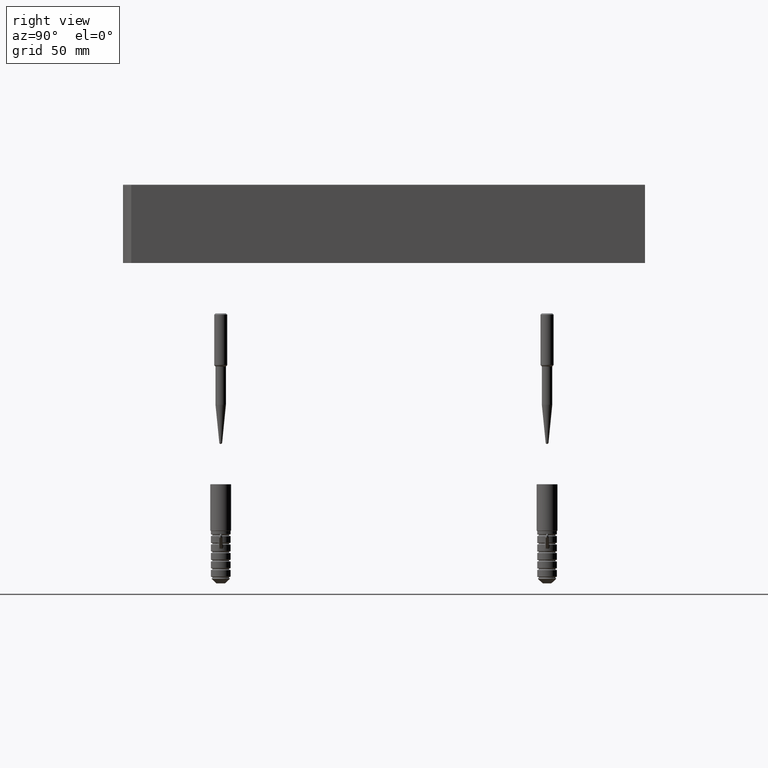
[diagram: clean part render]
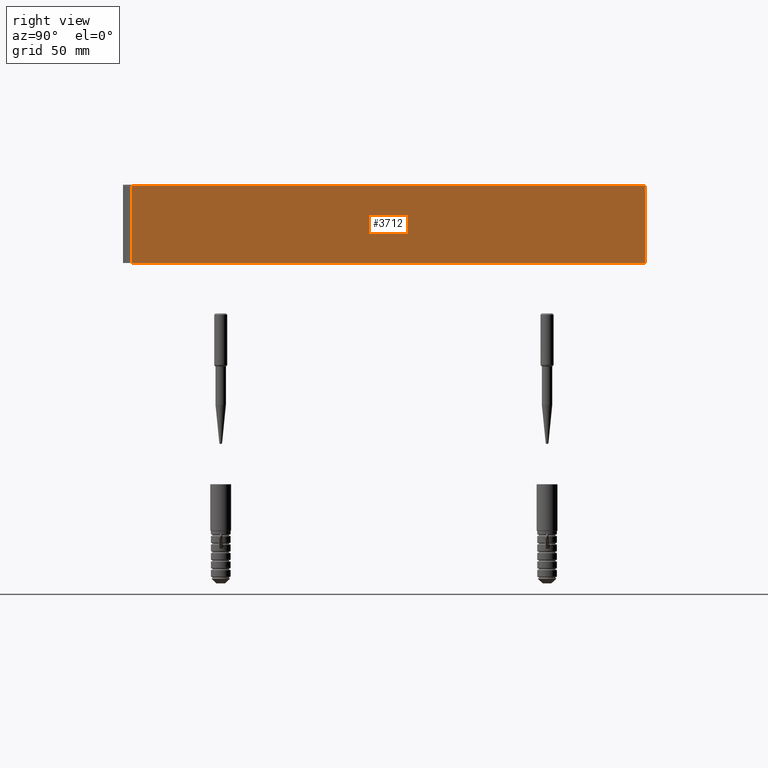
[diagram: same view with one face highlighted and labeled with its STEP entity id]
A machine part, right view. The second image highlights one B-rep face of the part: STEP entity #3712.
In plain terms, the highlighted planar face has unit normal (-1, 0, 0).
Its self-contained STEP definition (entity closure, byte-faithful):
#3712 = ADVANCED_FACE ( 'NONE', ( #22223 ), #25237, .F. ) ;
#3812 = VERTEX_POINT ( 'NONE', #9298 ) ;
#4460 = LINE ( 'NONE', #11918, #14329 ) ;
#5857 = VECTOR ( 'NONE', #27841, 1000.000000000000000 ) ;
#6387 = EDGE_CURVE ( 'NONE', #24046, #11675, #13163, .T. ) ;
#7088 = CARTESIAN_POINT ( 'NONE',  ( 10.03360237815750700, 0.0000000000000000000, -28.00000000000000000 ) ) ;
#8342 = LINE ( 'NONE', #12852, #15356 ) ;
#9277 = VECTOR ( 'NONE', #20451, 1000.000000000000000 ) ;
#9298 = CARTESIAN_POINT ( 'NONE',  ( 10.03360237815750700, 0.8541344525432801300, 1.750000000000000000 ) ) ;
#11675 = VERTEX_POINT ( 'NONE', #13706 ) ;
#11677 = DIRECTION ( 'NONE',  ( -1.000000000000000000, 0.0000000000000000000, 0.0000000000000000000 ) ) ;
#11918 = CARTESIAN_POINT ( 'NONE',  ( 10.03360237815750700, 0.8541344525432801300, 2.000000000000000000 ) ) ;
#12852 = CARTESIAN_POINT ( 'NONE',  ( 10.03360237815750700, 197.6732199396201700, 1.750000000000000000 ) ) ;
#13163 = LINE ( 'NONE', #7088, #9277 ) ;
#13385 = CARTESIAN_POINT ( 'NONE',  ( 10.03360237815750700, 197.6732199396201700, 1.750000000000000000 ) ) ;
#13706 = CARTESIAN_POINT ( 'NONE',  ( 10.03360237815750700, 0.8541344525432801300, -28.00000000000000000 ) ) ;
#14329 = VECTOR ( 'NONE', #27664, 1000.000000000000000 ) ;
#14338 = ORIENTED_EDGE ( 'NONE', *, *, #20475, .T. ) ;
#15356 = VECTOR ( 'NONE', #22554, 1000.000000000000000 ) ;
#15804 = EDGE_CURVE ( 'NONE', #22742, #24046, #18873, .T. ) ;
#16017 = DIRECTION ( 'NONE',  ( 0.0000000000000000000, 0.0000000000000000000, 1.000000000000000000 ) ) ;
#18616 = CARTESIAN_POINT ( 'NONE',  ( 10.03360237815750700, 197.6732199396201700, 2.000000000000000000 ) ) ;
#18873 = LINE ( 'NONE', #18616, #5857 ) ;
#19880 = EDGE_CURVE ( 'NONE', #22742, #3812, #8342, .T. ) ;
#20451 = DIRECTION ( 'NONE',  ( 0.0000000000000000000, -1.000000000000000000, 0.0000000000000000000 ) ) ;
#20475 = EDGE_CURVE ( 'NONE', #3812, #11675, #4460, .T. ) ;
#21830 = AXIS2_PLACEMENT_3D ( 'NONE', #27615, #11677, #16017 ) ;
#22223 = FACE_OUTER_BOUND ( 'NONE', #24219, .T. ) ;
#22554 = DIRECTION ( 'NONE',  ( -0.0000000000000000000, -1.000000000000000000, -0.0000000000000000000 ) ) ;
#22742 = VERTEX_POINT ( 'NONE', #13385 ) ;
#23044 = CARTESIAN_POINT ( 'NONE',  ( 10.03360237815750700, 197.6732199396201700, -28.00000000000000000 ) ) ;
#24046 = VERTEX_POINT ( 'NONE', #23044 ) ;
#24219 = EDGE_LOOP ( 'NONE', ( #24850, #28983, #14338, #27427 ) ) ;
#24850 = ORIENTED_EDGE ( 'NONE', *, *, #15804, .F. ) ;
#25237 = PLANE ( 'NONE',  #21830 ) ;
#27427 = ORIENTED_EDGE ( 'NONE', *, *, #6387, .F. ) ;
#27615 = CARTESIAN_POINT ( 'NONE',  ( 10.03360237815750700, 197.6732199396201700, 2.000000000000000000 ) ) ;
#27664 = DIRECTION ( 'NONE',  ( -0.0000000000000000000, -0.0000000000000000000, -1.000000000000000000 ) ) ;
#27841 = DIRECTION ( 'NONE',  ( -0.0000000000000000000, -0.0000000000000000000, -1.000000000000000000 ) ) ;
#28983 = ORIENTED_EDGE ( 'NONE', *, *, #19880, .T. ) ;